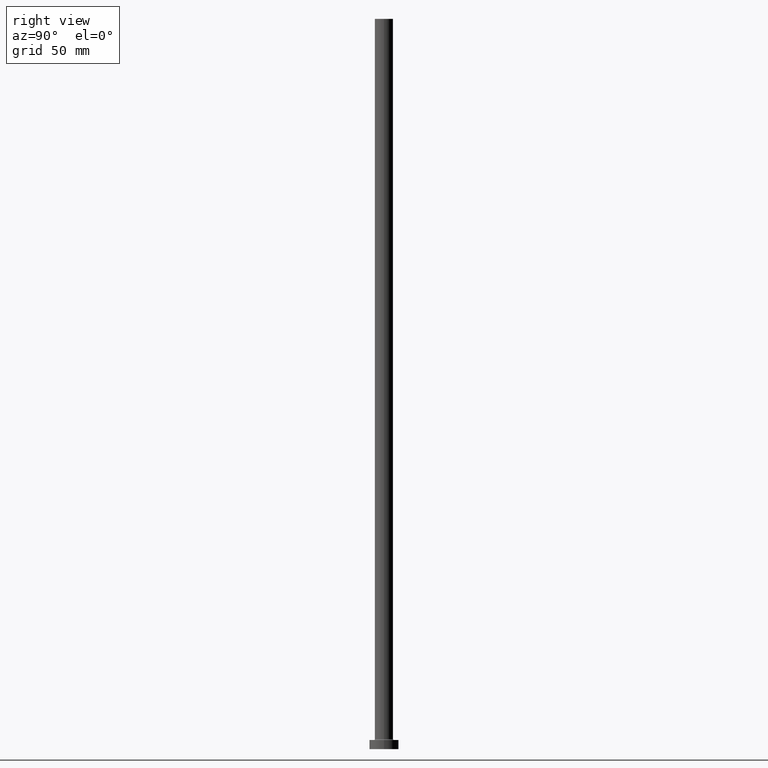
[diagram: clean part render]
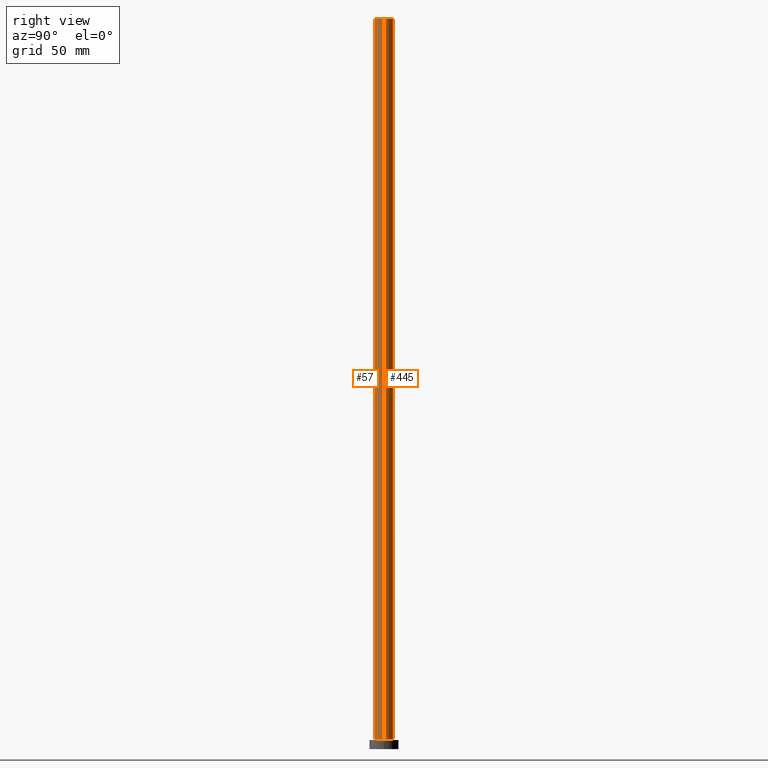
[diagram: same view with one multi-face feature highlighted, each face labeled with its STEP entity id]
A machine part, right view. The highlighted faces form ONE feature: a constant-radius fillet chain: 2 tangent blend faces with common blend radius 5 mm. The faces share edges in the B-rep.
Their STEP definitions:
[1] entity #445 (Cylinder):
#24 = CARTESIAN_POINT ( 'NONE',  ( 0.000000000000000000, 0.000000000000000000, 400.0000000000000000 ) ) ;
#32 = CARTESIAN_POINT ( 'NONE',  ( -5.000000000000000000, 0.000000000000000000, 400.0000000000000000 ) ) ;
#36 = ORIENTED_EDGE ( 'NONE', *, *, #356, .F. ) ;
#65 = FACE_OUTER_BOUND ( 'NONE', #317, .T. ) ;
#66 = DIRECTION ( 'NONE',  ( 1.000000000000000000, 0.000000000000000000, 0.000000000000000000 ) ) ;
#81 = VECTOR ( 'NONE', #378, 1000.000000000000000 ) ;
#93 = VECTOR ( 'NONE', #453, 1000.000000000000000 ) ;
#98 = CARTESIAN_POINT ( 'NONE',  ( 0.000000000000000000, 0.000000000000000000, 5.500000000000005329 ) ) ;
#101 = AXIS2_PLACEMENT_3D ( 'NONE', #24, #265, #419 ) ;
#161 = LINE ( 'NONE', #32, #93 ) ;
#164 = AXIS2_PLACEMENT_3D ( 'NONE', #98, #345, #239 ) ;
#168 = ORIENTED_EDGE ( 'NONE', *, *, #363, .F. ) ;
#172 = ORIENTED_EDGE ( 'NONE', *, *, #435, .T. ) ;
#204 = LINE ( 'NONE', #254, #81 ) ;
#217 = CARTESIAN_POINT ( 'NONE',  ( 5.000000000000000000, 6.123233995736765296E-16, 400.0000000000000000 ) ) ;
#239 = DIRECTION ( 'NONE',  ( 1.000000000000000000, 0.000000000000000000, 0.000000000000000000 ) ) ;
#254 = CARTESIAN_POINT ( 'NONE',  ( 5.000000000000000000, 6.123233995736765296E-16, 400.0000000000000000 ) ) ;
#256 = VERTEX_POINT ( 'NONE', #304 ) ;
#265 = DIRECTION ( 'NONE',  ( -0.000000000000000000, -0.000000000000000000, -1.000000000000000000 ) ) ;
#269 = CYLINDRICAL_SURFACE ( 'NONE', #101, 5.000000000000000000 ) ;
#273 = VERTEX_POINT ( 'NONE', #424 ) ;
#276 = CIRCLE ( 'NONE', #399, 5.000000000000000000 ) ;
#281 = VERTEX_POINT ( 'NONE', #217 ) ;
#289 = ORIENTED_EDGE ( 'NONE', *, *, #452, .T. ) ;
#304 = CARTESIAN_POINT ( 'NONE',  ( 5.000000000000000000, 6.123233995736765296E-16, 5.500000000000005329 ) ) ;
#317 = EDGE_LOOP ( 'NONE', ( #168, #172, #289, #36 ) ) ;
#320 = VERTEX_POINT ( 'NONE', #444 ) ;
#345 = DIRECTION ( 'NONE',  ( 0.000000000000000000, 0.000000000000000000, 1.000000000000000000 ) ) ;
#356 = EDGE_CURVE ( 'NONE', #320, #273, #161, .T. ) ;
#362 = CIRCLE ( 'NONE', #164, 5.000000000000000000 ) ;
#363 = EDGE_CURVE ( 'NONE', #281, #320, #276, .T. ) ;
#378 = DIRECTION ( 'NONE',  ( -0.000000000000000000, -0.000000000000000000, -1.000000000000000000 ) ) ;
#399 = AXIS2_PLACEMENT_3D ( 'NONE', #422, #449, #66 ) ;
#419 = DIRECTION ( 'NONE',  ( -1.000000000000000000, 0.000000000000000000, 0.000000000000000000 ) ) ;
#422 = CARTESIAN_POINT ( 'NONE',  ( 0.000000000000000000, 0.000000000000000000, 400.0000000000000000 ) ) ;
#424 = CARTESIAN_POINT ( 'NONE',  ( -5.000000000000000000, 0.000000000000000000, 5.500000000000005329 ) ) ;
#435 = EDGE_CURVE ( 'NONE', #281, #256, #204, .T. ) ;
#444 = CARTESIAN_POINT ( 'NONE',  ( -5.000000000000000000, 0.000000000000000000, 400.0000000000000000 ) ) ;
#445 = ADVANCED_FACE ( 'NONE', ( #65 ), #269, .T. ) ;
#449 = DIRECTION ( 'NONE',  ( 0.000000000000000000, 0.000000000000000000, 1.000000000000000000 ) ) ;
#452 = EDGE_CURVE ( 'NONE', #256, #273, #362, .T. ) ;
#453 = DIRECTION ( 'NONE',  ( -0.000000000000000000, -0.000000000000000000, -1.000000000000000000 ) ) ;
[2] entity #57 (Cylinder):
#22 = EDGE_CURVE ( 'NONE', #273, #256, #359, .T. ) ;
#32 = CARTESIAN_POINT ( 'NONE',  ( -5.000000000000000000, 0.000000000000000000, 400.0000000000000000 ) ) ;
#49 = CIRCLE ( 'NONE', #157, 5.000000000000000000 ) ;
#51 = ORIENTED_EDGE ( 'NONE', *, *, #22, .T. ) ;
#57 = ADVANCED_FACE ( 'NONE', ( #369 ), #212, .T. ) ;
#58 = CARTESIAN_POINT ( 'NONE',  ( 0.000000000000000000, 0.000000000000000000, 400.0000000000000000 ) ) ;
#60 = AXIS2_PLACEMENT_3D ( 'NONE', #259, #364, #291 ) ;
#81 = VECTOR ( 'NONE', #378, 1000.000000000000000 ) ;
#93 = VECTOR ( 'NONE', #453, 1000.000000000000000 ) ;
#97 = EDGE_LOOP ( 'NONE', ( #455, #105, #175, #51 ) ) ;
#105 = ORIENTED_EDGE ( 'NONE', *, *, #417, .F. ) ;
#157 = AXIS2_PLACEMENT_3D ( 'NONE', #58, #279, #243 ) ;
#161 = LINE ( 'NONE', #32, #93 ) ;
#175 = ORIENTED_EDGE ( 'NONE', *, *, #356, .T. ) ;
#204 = LINE ( 'NONE', #254, #81 ) ;
#212 = CYLINDRICAL_SURFACE ( 'NONE', #297, 5.000000000000000000 ) ;
#217 = CARTESIAN_POINT ( 'NONE',  ( 5.000000000000000000, 6.123233995736765296E-16, 400.0000000000000000 ) ) ;
#243 = DIRECTION ( 'NONE',  ( 1.000000000000000000, 0.000000000000000000, 0.000000000000000000 ) ) ;
#254 = CARTESIAN_POINT ( 'NONE',  ( 5.000000000000000000, 6.123233995736765296E-16, 400.0000000000000000 ) ) ;
#256 = VERTEX_POINT ( 'NONE', #304 ) ;
#259 = CARTESIAN_POINT ( 'NONE',  ( 0.000000000000000000, 0.000000000000000000, 5.500000000000005329 ) ) ;
#273 = VERTEX_POINT ( 'NONE', #424 ) ;
#279 = DIRECTION ( 'NONE',  ( 0.000000000000000000, 0.000000000000000000, 1.000000000000000000 ) ) ;
#281 = VERTEX_POINT ( 'NONE', #217 ) ;
#287 = DIRECTION ( 'NONE',  ( -1.000000000000000000, 0.000000000000000000, 0.000000000000000000 ) ) ;
#291 = DIRECTION ( 'NONE',  ( 1.000000000000000000, 0.000000000000000000, 0.000000000000000000 ) ) ;
#297 = AXIS2_PLACEMENT_3D ( 'NONE', #400, #358, #287 ) ;
#304 = CARTESIAN_POINT ( 'NONE',  ( 5.000000000000000000, 6.123233995736765296E-16, 5.500000000000005329 ) ) ;
#320 = VERTEX_POINT ( 'NONE', #444 ) ;
#356 = EDGE_CURVE ( 'NONE', #320, #273, #161, .T. ) ;
#358 = DIRECTION ( 'NONE',  ( -0.000000000000000000, -0.000000000000000000, -1.000000000000000000 ) ) ;
#359 = CIRCLE ( 'NONE', #60, 5.000000000000000000 ) ;
#364 = DIRECTION ( 'NONE',  ( 0.000000000000000000, 0.000000000000000000, 1.000000000000000000 ) ) ;
#369 = FACE_OUTER_BOUND ( 'NONE', #97, .T. ) ;
#378 = DIRECTION ( 'NONE',  ( -0.000000000000000000, -0.000000000000000000, -1.000000000000000000 ) ) ;
#400 = CARTESIAN_POINT ( 'NONE',  ( 0.000000000000000000, 0.000000000000000000, 400.0000000000000000 ) ) ;
#417 = EDGE_CURVE ( 'NONE', #320, #281, #49, .T. ) ;
#424 = CARTESIAN_POINT ( 'NONE',  ( -5.000000000000000000, 0.000000000000000000, 5.500000000000005329 ) ) ;
#435 = EDGE_CURVE ( 'NONE', #281, #256, #204, .T. ) ;
#444 = CARTESIAN_POINT ( 'NONE',  ( -5.000000000000000000, 0.000000000000000000, 400.0000000000000000 ) ) ;
#453 = DIRECTION ( 'NONE',  ( -0.000000000000000000, -0.000000000000000000, -1.000000000000000000 ) ) ;
#455 = ORIENTED_EDGE ( 'NONE', *, *, #435, .F. ) ;